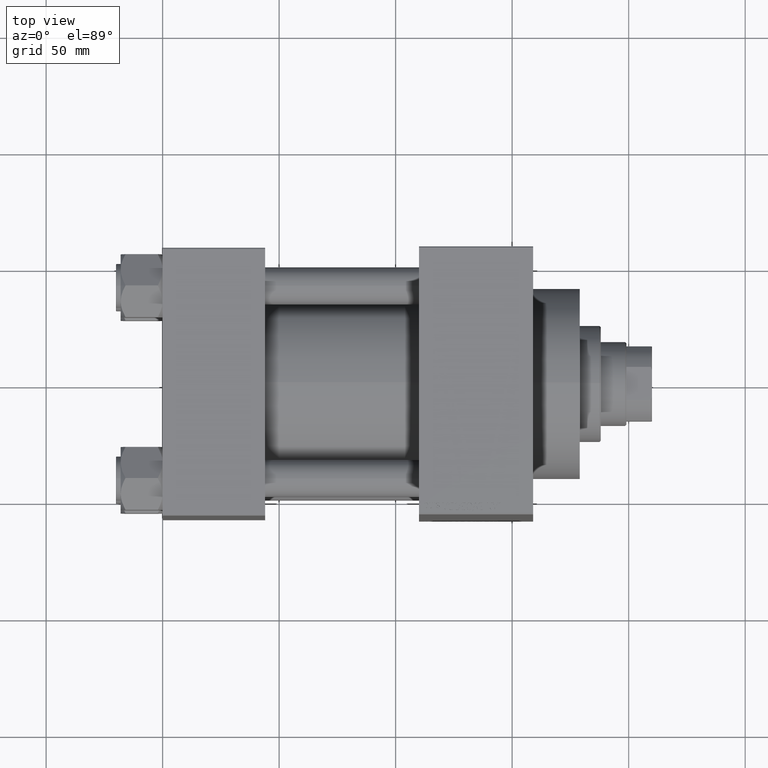
[diagram: clean part render]
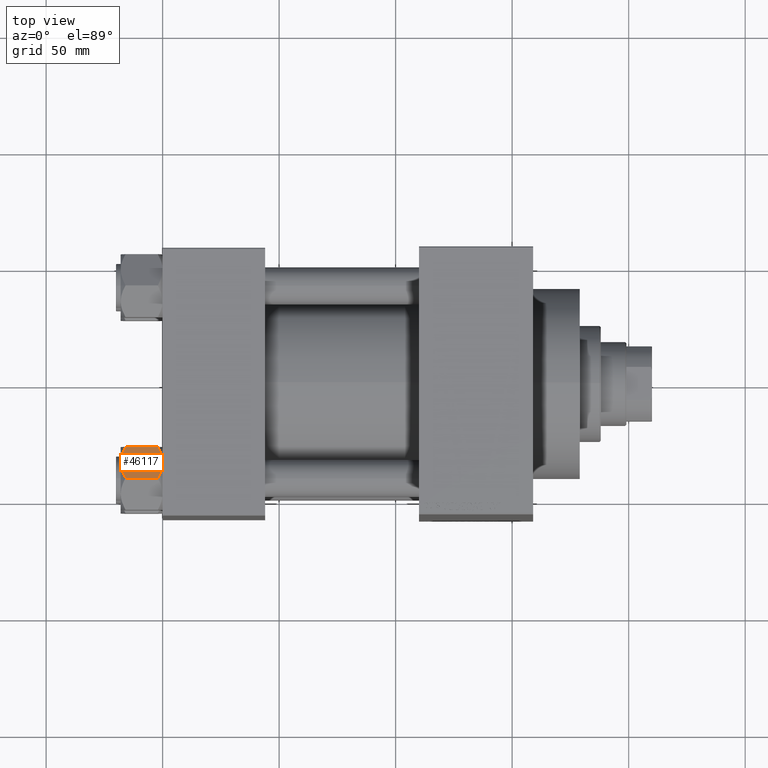
[diagram: same view with one face highlighted and labeled with its STEP entity id]
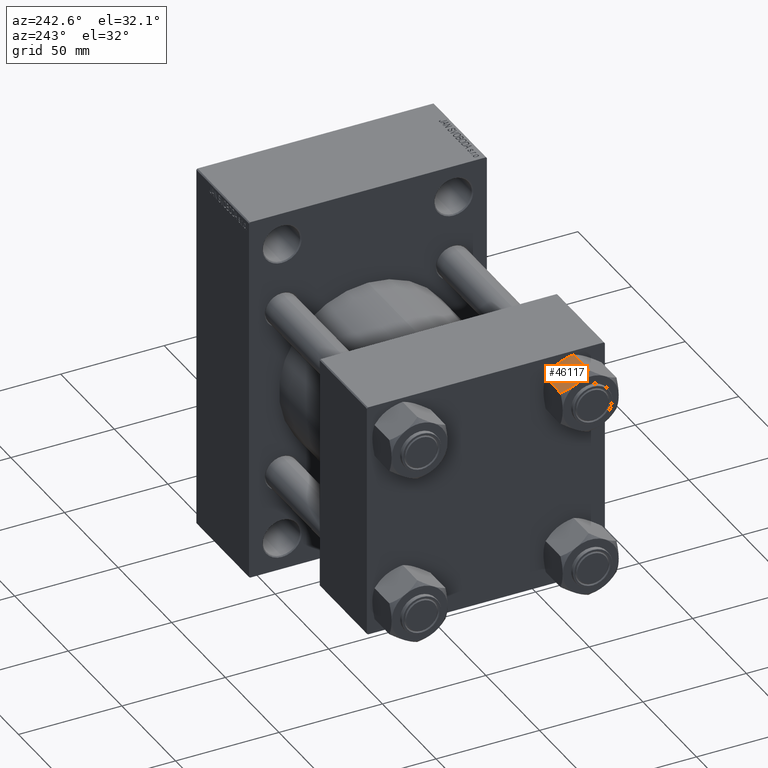
[diagram: same view with one face highlighted and labeled with its STEP entity id]
A machine part, top view. The second image highlights one B-rep face of the part: STEP entity #46117.
A second angle (auxiliary view) of the same face is appended — the face is thin or edge-on in the first view.
In plain terms, the highlighted planar face has unit normal (0, -0.5, -0.866).
Its self-contained STEP definition (entity closure, byte-faithful):
#66 = DIRECTION ( 'NONE',  ( 0.4999999999999995559, -0.8660254037844389297, 0.000000000000000000 ) ) ;
#873 = B_SPLINE_CURVE_WITH_KNOTS ( 'NONE', 3,
 ( #32327, #46790, #10623, #43169, #25332, #40262, #39551, #31844 ),
 .UNSPECIFIED., .F., .F.,
 ( 4, 2, 2, 4 ),
 ( 0.007890825462474455182, 0.01181022244528557447, 0.01376992093669113237, 0.01572961942809669028 ),
 .UNSPECIFIED. ) ;
#939 = EDGE_CURVE ( 'NONE', #24731, #36473, #873, .T. ) ;
#2284 = CARTESIAN_POINT ( 'NONE',  ( -10.06459418565412456, -9.622245127110604201, -17.61639331488794014 ) ) ;
#2289 = CARTESIAN_POINT ( 'NONE',  ( -12.04818928091285635, -6.186557640478057785, 6.657678965418800665E-15 ) ) ;
#3044 = CARTESIAN_POINT ( 'NONE',  ( -15.22736220980736199, -0.6800686015852087651, -16.29368822085855584 ) ) ;
#3760 = B_SPLINE_CURVE_WITH_KNOTS ( 'NONE', 3,
 ( #41817, #4962, #16752, #27372, #8814, #46405, #2289, #20127 ),
 .UNSPECIFIED., .F., .F.,
 ( 4, 2, 2, 4 ),
 ( 4.472842642040518533E-07, 0.003945636373369329139, 0.005918230917921892160, 0.007890825462474455182 ),
 .UNSPECIFIED. ) ;
#4280 = LINE ( 'NONE', #26457, #43459 ) ;
#4332 = ORIENTED_EDGE ( 'NONE', *, *, #23272, .F. ) ;
#4962 = CARTESIAN_POINT ( 'NONE',  ( -14.92760668674625002, -1.199260397376435083, -1.411989271640064603 ) ) ;
#5105 = CARTESIAN_POINT ( 'NONE',  ( -15.61999999999999922, 5.965997004755138422E-15, -16.00000000000000000 ) ) ;
#5173 = VERTEX_POINT ( 'NONE', #5105 ) ;
#5429 = CARTESIAN_POINT ( 'NONE',  ( -7.903528262322677023, -13.36532110482643176, -16.00000000000000000 ) ) ;
#7658 = PLANE ( 'NONE',  #17824 ) ;
#7984 = CARTESIAN_POINT ( 'NONE',  ( -7.903528262322677023, -13.36532110482643176, -2.000000000000000000 ) ) ;
#8814 = CARTESIAN_POINT ( 'NONE',  ( -13.04337073483128329, -4.462852799541076720, -0.2430846701012917832 ) ) ;
#9127 = CARTESIAN_POINT ( 'NONE',  ( -14.92394044919338825, -1.205610507090617345, -16.56553707812499709 ) ) ;
#9570 = VECTOR ( 'NONE', #9980, 1000.000000000000000 ) ;
#9980 = DIRECTION ( 'NONE',  ( -0.000000000000000000, -0.000000000000000000, 1.000000000000000000 ) ) ;
#10271 = CARTESIAN_POINT ( 'NONE',  ( -11.71500000000000874, -6.763658403556465082, -18.00000000000000000 ) ) ;
#10404 = EDGE_CURVE ( 'NONE', #21380, #47229, #25858, .T. ) ;
#10623 = CARTESIAN_POINT ( 'NONE',  ( -10.40215497533437450, -9.037572688741349225, -0.1971866459924505599 ) ) ;
#10793 = B_SPLINE_CURVE_WITH_KNOTS ( 'NONE', 3,
 ( #39910, #25219, #36279, #43764, #19962, #9127, #3044, #21591 ),
 .UNSPECIFIED., .F., .F.,
 ( 4, 2, 2, 4 ),
 ( 0.007890825462474429161, 0.01181022244528554671, 0.01376992093669110635, 0.01572961942809666600 ),
 .UNSPECIFIED. ) ;
#10908 = CARTESIAN_POINT ( 'NONE',  ( -7.810000000000004050, -13.52731680711293194, -1.999999999999998224 ) ) ;
#11082 = B_SPLINE_CURVE_WITH_KNOTS ( 'NONE', 3,
 ( #5429, #20120, #34828, #2284, #46146, #31453, #16745, #46635 ),
 .UNSPECIFIED., .F., .F.,
 ( 4, 2, 2, 4 ),
 ( 4.472842641823326050E-07, 0.003945636373369307455, 0.005918230917921868742, 0.007890825462474429161 ),
 .UNSPECIFIED. ) ;
#11228 = VERTEX_POINT ( 'NONE', #18506 ) ;
#11416 = VERTEX_POINT ( 'NONE', #10271 ) ;
#11742 = DIRECTION ( 'NONE',  ( -0.4999999999999995559, 0.8660254037844389297, 0.000000000000000000 ) ) ;
#12480 = CARTESIAN_POINT ( 'NONE',  ( -7.810000000000004050, -13.52731680711293194, -1.999999999999998224 ) ) ;
#12998 = ORIENTED_EDGE ( 'NONE', *, *, #38066, .F. ) ;
#14664 = ORIENTED_EDGE ( 'NONE', *, *, #24831, .T. ) ;
#14759 = DIRECTION ( 'NONE',  ( -0.000000000000000000, -0.000000000000000000, 1.000000000000000000 ) ) ;
#15126 = CARTESIAN_POINT ( 'NONE',  ( -7.810000000000004050, -13.52731680711293194, -18.00000000000000000 ) ) ;
#16745 = CARTESIAN_POINT ( 'NONE',  ( -11.38181071908714692, -7.340759166634862609, -18.00000000000000711 ) ) ;
#16752 = CARTESIAN_POINT ( 'NONE',  ( -14.31545111198821552, -2.259544954993879973, -0.9142282604026908954 ) ) ;
#16887 = ORIENTED_EDGE ( 'NONE', *, *, #939, .F. ) ;
#17061 = CARTESIAN_POINT ( 'NONE',  ( -7.810000000000004050, -13.52731680711293194, -16.00000000000000000 ) ) ;
#17824 = AXIS2_PLACEMENT_3D ( 'NONE', #15126, #30076, #11742 ) ;
#18377 = CARTESIAN_POINT ( 'NONE',  ( -7.810000000000004050, -13.52731680711293194, -18.00000000000000000 ) ) ;
#18506 = CARTESIAN_POINT ( 'NONE',  ( -15.52647173767732980, -0.1619957022864866314, -16.00000000000000000 ) ) ;
#19190 = CARTESIAN_POINT ( 'NONE',  ( -7.810000000000004050, -13.52731680711293194, -1.999999999999998224 ) ) ;
#19962 = CARTESIAN_POINT ( 'NONE',  ( -14.30591678195076533, -2.276058899034883343, -17.05261278537718894 ) ) ;
#20120 = CARTESIAN_POINT ( 'NONE',  ( -8.502393313253756801, -12.32805640973648842, -16.58801072835994006 ) ) ;
#20127 = CARTESIAN_POINT ( 'NONE',  ( -11.71500000000000874, -6.763658403556465082, 0.000000000000000000 ) ) ;
#20661 = VECTOR ( 'NONE', #34888, 1000.000000000000114 ) ;
#21076 = CARTESIAN_POINT ( 'NONE',  ( -15.61999999999999922, 5.965997004755138422E-15, -18.00000000000000000 ) ) ;
#21240 = ORIENTED_EDGE ( 'NONE', *, *, #28344, .F. ) ;
#21380 = VERTEX_POINT ( 'NONE', #37194 ) ;
#21569 = VECTOR ( 'NONE', #66, 1000.000000000000114 ) ;
#21591 = CARTESIAN_POINT ( 'NONE',  ( -15.52647173767732980, -0.1619957022864866314, -16.00000000000000000 ) ) ;
#21746 = EDGE_LOOP ( 'NONE', ( #40568, #14664, #4332, #16887, #40266, #39576, #21240, #39266, #47521, #12998 ) ) ;
#23272 = EDGE_CURVE ( 'NONE', #36473, #39756, #30815, .T. ) ;
#24547 = DIRECTION ( 'NONE',  ( -0.4999999999999995559, 0.8660254037844389297, 0.000000000000000000 ) ) ;
#24731 = VERTEX_POINT ( 'NONE', #33564 ) ;
#24831 = EDGE_CURVE ( 'NONE', #46736, #39756, #44403, .T. ) ;
#25219 = CARTESIAN_POINT ( 'NONE',  ( -12.37702203890362362, -5.617002596445044738, -18.00000000000000355 ) ) ;
#25332 = CARTESIAN_POINT ( 'NONE',  ( -9.124083218049239719, -11.25125790807803483, -0.9473872146228100588 ) ) ;
#25858 = LINE ( 'NONE', #10908, #21569 ) ;
#25977 = EDGE_CURVE ( 'NONE', #11228, #5173, #36097, .T. ) ;
#26457 = CARTESIAN_POINT ( 'NONE',  ( -7.810000000000004050, -13.52731680711293194, -16.00000000000000000 ) ) ;
#27372 = CARTESIAN_POINT ( 'NONE',  ( -13.36540581434588226, -3.905071680002311751, -0.3836066851120544796 ) ) ;
#28344 = EDGE_CURVE ( 'NONE', #5173, #21380, #47102, .T. ) ;
#28795 = VERTEX_POINT ( 'NONE', #35201 ) ;
#29180 = EDGE_CURVE ( 'NONE', #46736, #28795, #4280, .T. ) ;
#30076 = DIRECTION ( 'NONE',  ( 0.8660254037844389297, 0.4999999999999995559, 0.000000000000000000 ) ) ;
#30815 = LINE ( 'NONE', #12480, #20661 ) ;
#31453 = CARTESIAN_POINT ( 'NONE',  ( -11.04378428799594936, -7.926238119586001218, -17.94910618364699317 ) ) ;
#31844 = CARTESIAN_POINT ( 'NONE',  ( -7.903528262322677023, -13.36532110482643176, -2.000000000000000000 ) ) ;
#31985 = VECTOR ( 'NONE', #14759, 1000.000000000000000 ) ;
#32270 = CARTESIAN_POINT ( 'NONE',  ( -7.810000000000004050, -13.52731680711293194, -16.00000000000000000 ) ) ;
#32327 = CARTESIAN_POINT ( 'NONE',  ( -11.71500000000000874, -6.763658403556465082, 0.000000000000000000 ) ) ;
#33211 = FACE_OUTER_BOUND ( 'NONE', #21746, .T. ) ;
#33564 = CARTESIAN_POINT ( 'NONE',  ( -11.71500000000000874, -6.763658403556465082, 0.000000000000000000 ) ) ;
#33599 = EDGE_CURVE ( 'NONE', #11416, #11228, #10793, .T. ) ;
#34828 = CARTESIAN_POINT ( 'NONE',  ( -9.114548888011784200, -11.26777185211903998, -17.08577173959730544 ) ) ;
#34888 = DIRECTION ( 'NONE',  ( 0.4999999999999995559, -0.8660254037844389297, 0.000000000000000000 ) ) ;
#35201 = CARTESIAN_POINT ( 'NONE',  ( -7.903528262322677023, -13.36532110482643176, -16.00000000000000000 ) ) ;
#36026 = EDGE_CURVE ( 'NONE', #47229, #24731, #3760, .T. ) ;
#36097 = LINE ( 'NONE', #17061, #42769 ) ;
#36279 = CARTESIAN_POINT ( 'NONE',  ( -13.02784502466562699, -4.489744118371573833, -17.80281335400755083 ) ) ;
#36473 = VERTEX_POINT ( 'NONE', #7984 ) ;
#37194 = CARTESIAN_POINT ( 'NONE',  ( -15.61999999999999922, 5.965997004755138422E-15, -1.999999999999998224 ) ) ;
#38066 = EDGE_CURVE ( 'NONE', #28795, #11416, #11082, .T. ) ;
#39266 = ORIENTED_EDGE ( 'NONE', *, *, #25977, .F. ) ;
#39551 = CARTESIAN_POINT ( 'NONE',  ( -8.202637790192644829, -12.84724820552771085, -1.706311779141443274 ) ) ;
#39576 = ORIENTED_EDGE ( 'NONE', *, *, #10404, .F. ) ;
#39756 = VERTEX_POINT ( 'NONE', #19190 ) ;
#39910 = CARTESIAN_POINT ( 'NONE',  ( -11.71500000000000874, -6.763658403556465082, -18.00000000000000000 ) ) ;
#40262 = CARTESIAN_POINT ( 'NONE',  ( -8.506059550806616798, -12.32170630002230460, -1.434462921875001351 ) ) ;
#40266 = ORIENTED_EDGE ( 'NONE', *, *, #36026, .F. ) ;
#40568 = ORIENTED_EDGE ( 'NONE', *, *, #29180, .F. ) ;
#40656 = DIRECTION ( 'NONE',  ( -0.4999999999999995559, 0.8660254037844389297, 0.000000000000000000 ) ) ;
#41817 = CARTESIAN_POINT ( 'NONE',  ( -15.52647173767732980, -0.1619957022864866314, -2.000000000000000000 ) ) ;
#42769 = VECTOR ( 'NONE', #24547, 1000.000000000000114 ) ;
#43169 = CARTESIAN_POINT ( 'NONE',  ( -9.439480280627263298, -10.70497417113492133, -0.7317196846281108780 ) ) ;
#43459 = VECTOR ( 'NONE', #40656, 1000.000000000000114 ) ;
#43764 = CARTESIAN_POINT ( 'NONE',  ( -13.99051971937274530, -2.822342635977994618, -17.26828031537188934 ) ) ;
#44403 = LINE ( 'NONE', #18377, #31985 ) ;
#44661 = CARTESIAN_POINT ( 'NONE',  ( -15.52647173767732980, -0.1619957022864866314, -2.000000000000000000 ) ) ;
#46117 = ADVANCED_FACE ( 'NONE', ( #33211 ), #7658, .F. ) ;
#46146 = CARTESIAN_POINT ( 'NONE',  ( -10.38662926516871998, -9.064464007571846338, -17.75691532989870325 ) ) ;
#46405 = CARTESIAN_POINT ( 'NONE',  ( -12.38621571200405391, -5.601078687526923616, -0.05089381635300848500 ) ) ;
#46635 = CARTESIAN_POINT ( 'NONE',  ( -11.71500000000000874, -6.763658403556465082, -18.00000000000000000 ) ) ;
#46736 = VERTEX_POINT ( 'NONE', #32270 ) ;
#46790 = CARTESIAN_POINT ( 'NONE',  ( -11.05297796109638320, -7.910314210667880985, 6.220609964635581690E-15 ) ) ;
#47102 = LINE ( 'NONE', #21076, #9570 ) ;
#47229 = VERTEX_POINT ( 'NONE', #44661 ) ;
#47521 = ORIENTED_EDGE ( 'NONE', *, *, #33599, .F. ) ;